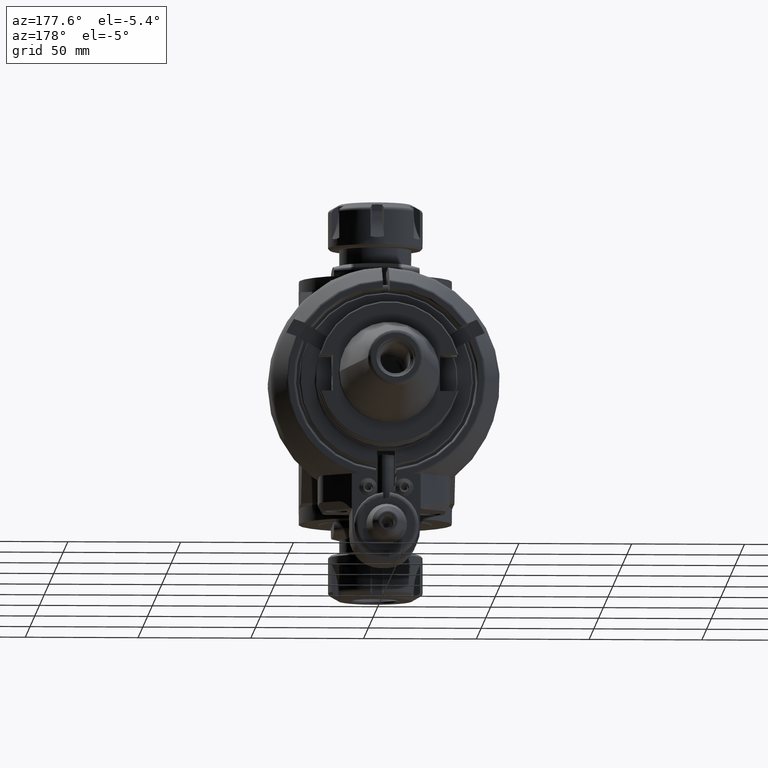
[diagram: clean part render]
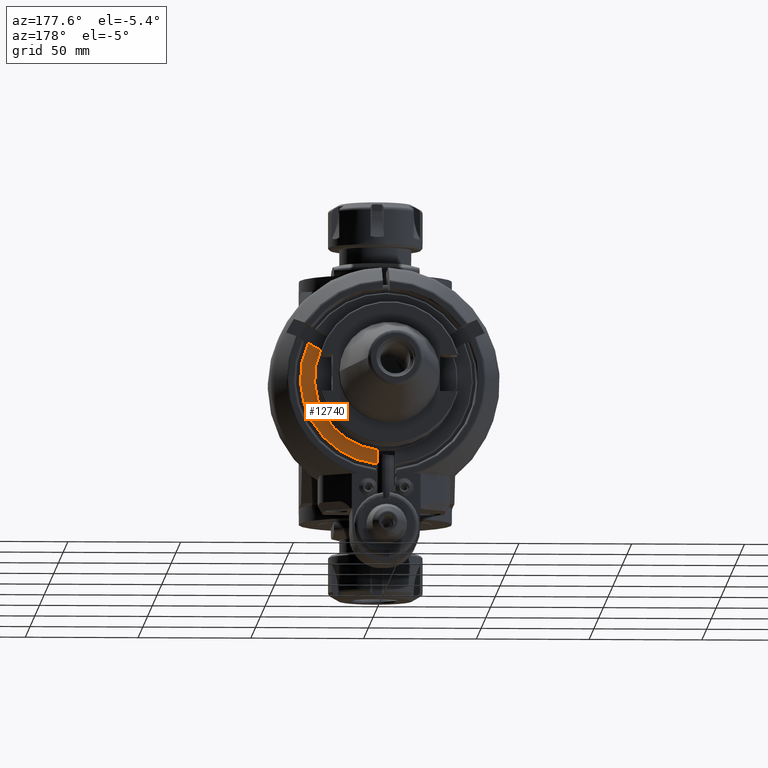
[diagram: same view with one face highlighted and labeled with its STEP entity id]
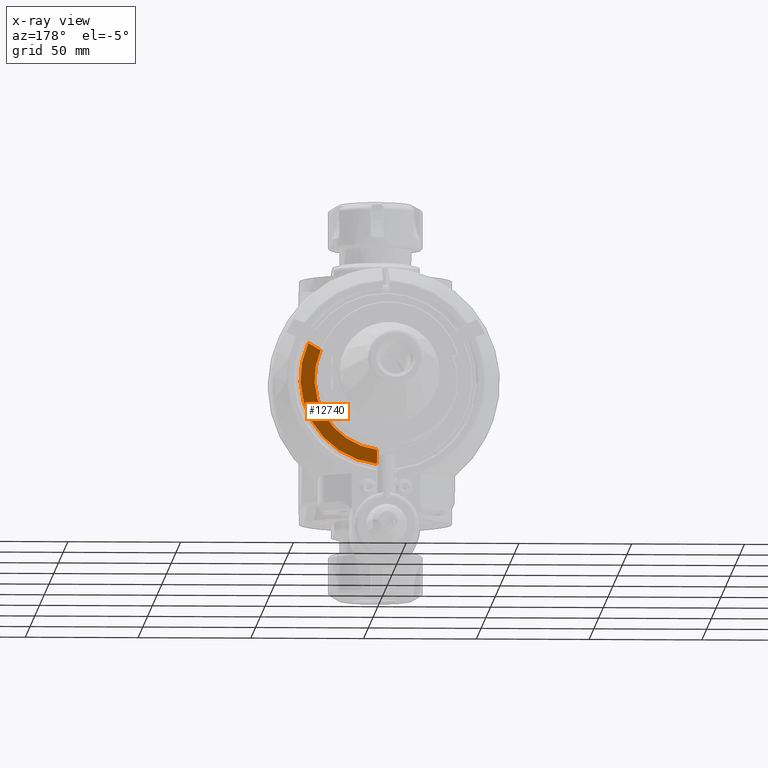
[diagram: x-ray of the same camera — body ghosted, the highlighted face saturated]
A machine part, auxiliary view. The second image highlights one B-rep face of the part: STEP entity #12740.
The next image is the same camera in x-ray: the body ghosted, the highlighted face saturated — about 0% of this face is hidden behind the body in this view.
In plain terms, the highlighted planar face has unit normal (0, 1, 0).
Its self-contained STEP definition (entity closure, byte-faithful):
#731=PLANE('',#13852);
#1430=FACE_OUTER_BOUND('',#2268,.T.);
#2268=EDGE_LOOP('',(#9661,#9662,#9663,#9664));
#3157=CIRCLE('',#13799,31.75);
#3181=CIRCLE('',#13851,38.);
#3954=LINE('',#20707,#4777);
#3958=LINE('',#20724,#4781);
#4777=VECTOR('',#16112,6.28197553114879);
#4781=VECTOR('',#16126,10.);
#5687=VERTEX_POINT('',#20533);
#5688=VERTEX_POINT('',#20537);
#5732=VERTEX_POINT('',#20703);
#5737=VERTEX_POINT('',#20723);
#7109=EDGE_CURVE('',#5688,#5687,#3157,.T.);
#7176=EDGE_CURVE('',#5687,#5732,#3954,.T.);
#7184=EDGE_CURVE('',#5737,#5688,#3958,.T.);
#7189=EDGE_CURVE('',#5732,#5737,#3181,.T.);
#9661=ORIENTED_EDGE('',*,*,#7189,.T.);
#9662=ORIENTED_EDGE('',*,*,#7184,.T.);
#9663=ORIENTED_EDGE('',*,*,#7109,.T.);
#9664=ORIENTED_EDGE('',*,*,#7176,.T.);
#12740=ADVANCED_FACE('',(#1430),#731,.T.);
#13799=AXIS2_PLACEMENT_3D('',#20538,#16000,#16001);
#13851=AXIS2_PLACEMENT_3D('',#20736,#16140,#16141);
#13852=AXIS2_PLACEMENT_3D('',#20737,#16142,#16143);
#16000=DIRECTION('center_axis',(0.,-1.,0.));
#16001=DIRECTION('ref_axis',(0.125978487418898,0.,-0.992032973598986));
#16112=DIRECTION('',(0.866025403784429,0.,0.500000000000017));
#16126=DIRECTION('',(0.,0.,1.));
#16140=DIRECTION('center_axis',(0.,1.,0.));
#16141=DIRECTION('ref_axis',(0.908396800327097,0.,0.418109140243899));
#16142=DIRECTION('center_axis',(0.,1.,0.));
#16143=DIRECTION('ref_axis',(-0.86926923622807,0.,-0.494338947431283));
#20533=CARTESIAN_POINT('',(29.0787280165,39.,12.74715956369));
#20537=CARTESIAN_POINT('',(3.99951055760282,38.9985543943417,-31.4985430348102));
#20538=CARTESIAN_POINT('Origin',(0.,39.,0.));
#20703=CARTESIAN_POINT('',(34.51907841243,39.,15.88814732927));
#20707=CARTESIAN_POINT('',(29.0787280165,39.,12.74715956369));
#20723=CARTESIAN_POINT('',(4.,39.,-37.78888725538));
#20724=CARTESIAN_POINT('',(4.,39.,-24.55152642015));
#20736=CARTESIAN_POINT('Origin',(0.,39.,0.));
#20737=CARTESIAN_POINT('Origin',(-30.95404959954,39.,-17.6030528403));